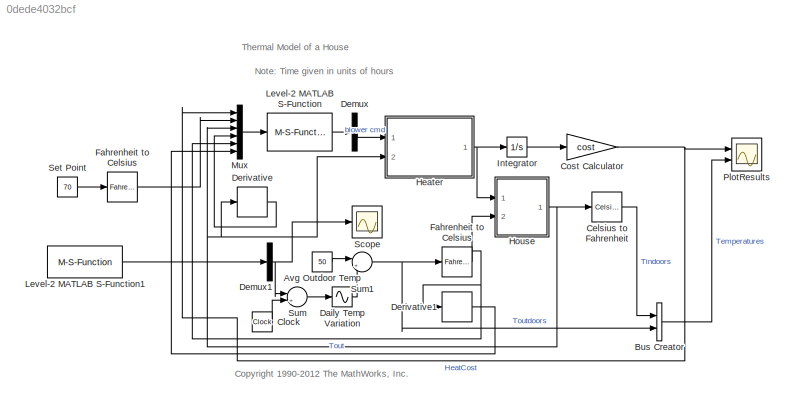
MODEL slx_0dede4032bcf
KIND model
CONFIG AbsTol = 1e-6
CONFIG EnableMultiTasking = off
CONFIG FixedStep = 0.05
CONFIG MaxStep = auto
CONFIG MinStep = auto
CONFIG PreLoadFcn = preload
CONFIG RelTol = 1e-3
CONFIG SampleTimeConstraint = Unconstrained
CONFIG Solver = FixedStepAuto
CONFIG SolverName = FixedStepAuto
CONFIG StartTime = 0.0
CONFIG StopTime = 12
WORKSPACE source: MATLAB code (in-file)
WORKSPACE code: sldemo_househeat_data
BLOCK [Constant] Avg Outdoor Temp
  Value = 50
BLOCK [BusCreator] Bus Creator
  DisplayOption = bar
  InheritFromInputs = on
  Inputs = 2
  Ports = [2, 1]
BLOCK [Reference] Celsius to Fahrenheit  REF=simulink_extras/Transformations/Celsius to
Fahrenheit
  Ports = [1, 1]
  SourceBlock = simulink_extras/Transformations/Celsius to\nFahrenheit
  SourceProductBaseCode = SL
  SourceProductName = Simulink
  SourceType = CelsiusToFahrenheit
BLOCK [Clock] Clock
  Decimation = 1
BLOCK [Gain] Cost Calculator
  Gain = cost
BLOCK [Sin] Daily Temp Variation
  Amplitude = 15
  Frequency = 2*pi/24
  Ports = [1, 1]
  SampleTime = 0
  TimeSource = Use external signal
BLOCK [Demux] Demux
  DisplayOption = bar
  Outputs = 1
  Ports = [1, 1]
BLOCK [Demux] Demux1
  DisplayOption = bar
  Outputs = 1
  Ports = [1, 1]
BLOCK [Derivative] Derivative
BLOCK [Derivative] Derivative1
BLOCK [Reference] Fahrenheit to Celsius  REF=simulink_extras/Transformations/Fahrenheit
to Celsius
  Ports = [1, 1]
  SourceBlock = simulink_extras/Transformations/Fahrenheit\nto Celsius
  SourceProductBaseCode = SL
  SourceProductName = Simulink
  SourceType = FahrenheitToCelsius
BLOCK [Reference] Fahrenheit to Celsius   REF=simulink_extras/Transformations/Fahrenheit
to Celsius
  Ports = [1, 1]
  SourceBlock = simulink_extras/Transformations/Fahrenheit\nto Celsius
  SourceProductBaseCode = SL
  SourceProductName = Simulink
  SourceType = FahrenheitToCelsius
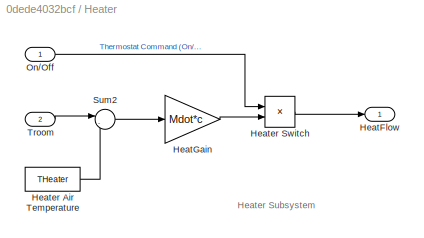
BLOCK [SubSystem] Heater
  Ports = [2, 1]
  RequestExecContextInheritance = off
  Variant = off
BLOCK [Outport] Heater/HeatFlow
  IconDisplay = Port number
BLOCK [Gain] Heater/HeatGain
  Gain = Mdot*c
  OutDataTypeStr = Inherit: Inherit via internal rule
  ParamDataTypeStr = Inherit: Inherit via internal rule
  SaturateOnIntegerOverflow = off
BLOCK [Constant] Heater/Heater Air Temperature
  Value = THeater
BLOCK [Product] Heater/Heater Switch
  InputSameDT = off
  OutDataTypeStr = Inherit: Inherit via internal rule
  Ports = [2, 1]
  SaturateOnIntegerOverflow = off
BLOCK [Inport] Heater/On//Off
  IconDisplay = Port number
BLOCK [Sum] Heater/Sum2
  IconShape = round
  InputSameDT = off
  Inputs = |-+
  OutDataTypeStr = Inherit: Inherit via internal rule
  Ports = [2, 1]
  SaturateOnIntegerOverflow = off
BLOCK [Inport] Heater/Troom
  IconDisplay = Port number
  Port = 2
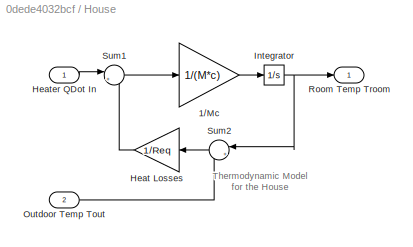
BLOCK [SubSystem] House
  Ports = [2, 1]
  RequestExecContextInheritance = off
  Variant = off
BLOCK [Gain] House/1//Mc
  Gain = 1/(M*c)
BLOCK [Gain] House/Heat Losses
  Gain = 1/Req
BLOCK [Inport] House/Heater QDot In
  IconDisplay = Port number
BLOCK [Integrator] House/Integrator
  InitialCondition = TinIC
  Ports = [1, 1]
BLOCK [Inport] House/Outdoor Temp Tout
  IconDisplay = Port number
  Port = 2
BLOCK [Outport] House/Room Temp Troom
  IconDisplay = Port number
  InitialOutput = 0
BLOCK [Sum] House/Sum1
  IconShape = round
  Inputs = |+-
  Ports = [2, 1]
BLOCK [Sum] House/Sum2
  IconShape = round
  Inputs = |+-
  Ports = [2, 1]
BLOCK [Integrator] Integrator
  Ports = [1, 1]
BLOCK [M-S-Function] Level-2 MATLAB S-Function
  FunctionName = bonsai_block
  Parameters = 6,1
  Ports = [1, 1]
BLOCK [M-S-Function] Level-2 MATLAB S-Function1
  FunctionName = bonsai_config
  Parameters = 1
  Ports = [0, 1]
BLOCK [Mux] Mux
  DisplayOption = bar
  Inputs = 6
  Ports = [6, 1]
BLOCK [Scope] PlotResults
  NumInputPorts = 2
  Ports = [2]
  ScopeSpecificationString = Simulink.scopes.TimeScopeBlockCfg('CurrentConfiguration', extmgr.ConfigurationSet(extmgr.Configuration('Core','General UI',true),extmgr.Configuration('Core','Source UI',true),extmgr.Configuration('Sources','WiredSimulink',true,'DataLoggingVariableName','a','DataLoggingSaveFormat','Array','DataLoggingDecimation','1','DataLoggingDecimateData',true),extmgr.Configuration('Visuals','Time Domain',true,'...<+2351ch>
BLOCK [Scope] Scope
  NumInputPorts = 1
  Ports = [1]
  ScopeSpecificationString = Simulink.scopes.TimeScopeBlockCfg('CurrentConfiguration', extmgr.ConfigurationSet(extmgr.Configuration('Core','General UI',true),extmgr.Configuration('Core','Source UI',true),extmgr.Configuration('Sources','WiredSimulink',true,'DataLoggingVariableName','ScopeData1'),extmgr.Configuration('Visuals','Time Domain',true),extmgr.Configuration('Tools','Plot Navigation',true),extmgr.Configuration('Tools',...<+40ch>
BLOCK [Constant] Set Point
  Value = 70
BLOCK [Sum] Sum
  IconShape = round
  InputSameDT = off
  Inputs = |++
  OutDataTypeStr = Inherit: Inherit via internal rule
  Ports = [2, 1]
  SaturateOnIntegerOverflow = off
BLOCK [Sum] Sum1
  IconShape = round
  Inputs = |++
  Ports = [2, 1]
ANNOTATION (root): <copyright redacted>
ANNOTATION (root): Note: Time given in units of hours
ANNOTATION (root): Thermal Model of a House
ANNOTATION Heater: Heater Subsystem
ANNOTATION House: Thermodynamic Model for the House
LINE Avg Outdoor Temp:1 -> Sum1:1
LINE Bus Creator:1 -> PlotResults:2
LINE Celsius to Fahrenheit:1 -> Bus Creator:1
LINE Clock:1 -> Sum:2
NET Cost Calculator:1 -> Mux:1, PlotResults:1
LINE Daily Temp Variation:1 -> Sum1:2
NET Demux1:1 -> Scope:1, Sum:1
LINE Demux:1 -> Heater:1
LINE Derivative1:1 -> Mux:6
LINE Derivative:1 -> Mux:4
LINE Fahrenheit to Celsius :1 -> Mux:2
NET Fahrenheit to Celsius:1 -> Derivative1:1, House:2, Mux:5
LINE Heater/HeatGain:1 -> Heater/Heater Switch:2
LINE Heater/Heater Air Temperature:1 -> Heater/Sum2:2
LINE Heater/Heater Switch:1 -> Heater/HeatFlow:1
LINE Heater/On//Off:1 -> Heater/Heater Switch:1
LINE Heater/Sum2:1 -> Heater/HeatGain:1
LINE Heater/Troom:1 -> Heater/Sum2:1
NET Heater:1 -> House:1, Integrator:1
LINE House/1//Mc:1 -> House/Integrator:1
LINE House/Heat Losses:1 -> House/Sum1:2
LINE House/Heater QDot In:1 -> House/Sum1:1
NET House/Integrator:1 -> House/Room Temp Troom:1, House/Sum2:1
LINE House/Outdoor Temp Tout:1 -> House/Sum2:2
LINE House/Sum1:1 -> House/1//Mc:1
LINE House/Sum2:1 -> House/Heat Losses:1
NET House:1 -> Celsius to Fahrenheit:1, Derivative:1, Heater:2, Mux:3
LINE Integrator:1 -> Cost Calculator:1
LINE Level-2 MATLAB S-Function1:1 -> Demux1:1
LINE Level-2 MATLAB S-Function:1 -> Demux:1
LINE Mux:1 -> Level-2 MATLAB S-Function:1
LINE Set Point:1 -> Fahrenheit to Celsius :1
NET Sum1:1 -> Bus Creator:2, Fahrenheit to Celsius:1
LINE Sum:1 -> Daily Temp Variation:1
note: NET lines group one-source signal fan-out (src -> all destinations, sorted); 1:1 wires keep LINE
